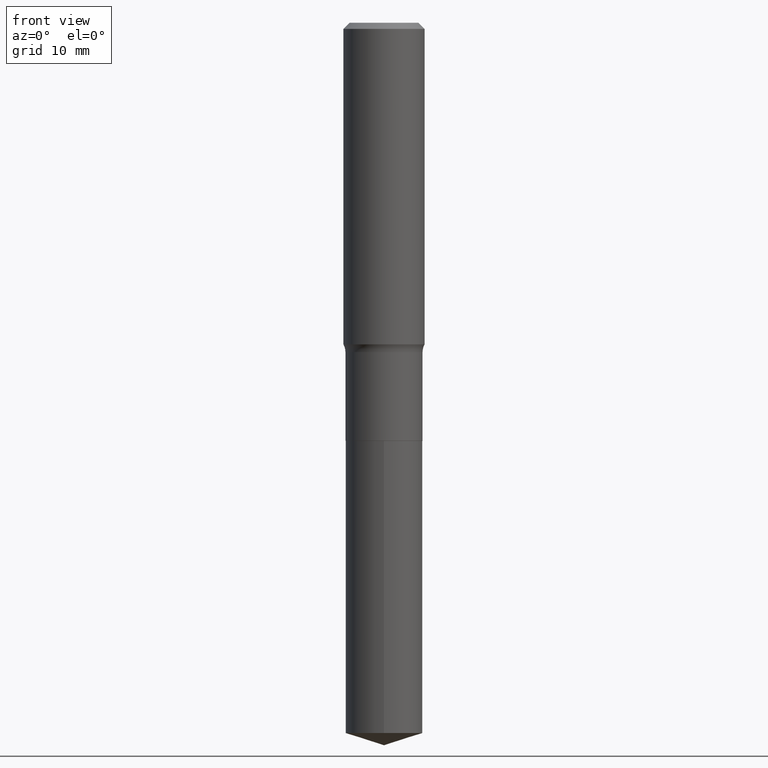
[diagram: clean part render]
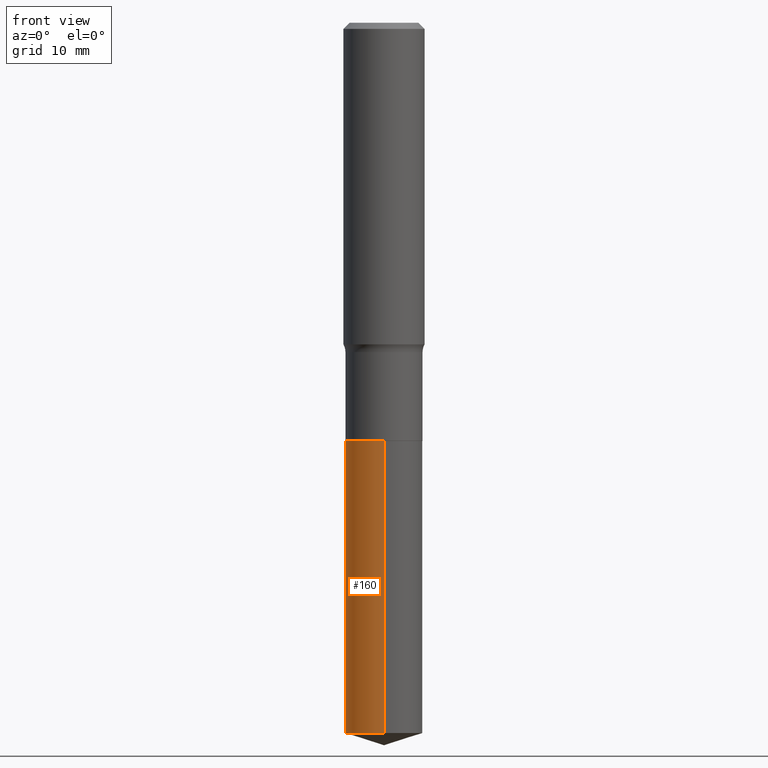
[diagram: same view with one face highlighted and labeled with its STEP entity id]
A machine part, front view. The second image highlights one B-rep face of the part: STEP entity #160.
In plain terms, the highlighted cylindrical surface (partial cylindrical patch) has radius 4.7498 mm, axis along (-0, 0, 1).
Its self-contained STEP definition (entity closure, byte-faithful):
#6 = CARTESIAN_POINT ( 'NONE',  ( 1.328714915871471555E-15, 0.1869999999999929496, -2.027500000000000302 ) ) ;
#22 = ORIENTED_EDGE ( 'NONE', *, *, #172, .T. ) ;
#27 = DIRECTION ( 'NONE',  ( -2.445146056917443157E-29, 3.491943534164230520E-15, 1.000000000000000000 ) ) ;
#30 = EDGE_CURVE ( 'NONE', #355, #370, #371, .T. ) ;
#74 = DIRECTION ( 'NONE',  ( -2.445146056917443157E-29, 3.491943534164230520E-15, 1.000000000000000000 ) ) ;
#77 = CARTESIAN_POINT ( 'NONE',  ( 4.958188004540364383E-29, -7.078978414504477806E-15, -2.027499999999999858 ) ) ;
#78 = DIRECTION ( 'NONE',  ( -2.445146056917442877E-29, 3.491943534164230520E-15, 1.000000000000000000 ) ) ;
#93 = CARTESIAN_POINT ( 'NONE',  ( 4.958188004540364383E-29, -7.078978414504477806E-15, -2.027499999999999858 ) ) ;
#97 = DIRECTION ( 'NONE',  ( -2.445146056917442877E-29, 3.491943534164230520E-15, 1.000000000000000000 ) ) ;
#120 = VECTOR ( 'NONE', #27, 39.37007874015748143 ) ;
#138 = EDGE_LOOP ( 'NONE', ( #467, #22, #408, #403 ) ) ;
#160 = ADVANCED_FACE ( 'NONE', ( #241 ), #394, .T. ) ;
#172 = EDGE_CURVE ( 'NONE', #355, #258, #369, .T. ) ;
#230 = CARTESIAN_POINT ( 'NONE',  ( -1.305814020727282303E-15, -0.1870000000000070772, -2.027499999999999414 ) ) ;
#233 = VECTOR ( 'NONE', #74, 39.37007874015748143 ) ;
#237 = CARTESIAN_POINT ( 'NONE',  ( 8.424033695572536525E-29, -1.202859580728641692E-14, -3.444939126479630076 ) ) ;
#241 = FACE_OUTER_BOUND ( 'NONE', #138, .T. ) ;
#244 = EDGE_CURVE ( 'NONE', #370, #328, #266, .T. ) ;
#248 = CARTESIAN_POINT ( 'NONE',  ( 1.328714915871436648E-15, 0.1869999999999929496, -2.027500000000000302 ) ) ;
#258 = VERTEX_POINT ( 'NONE', #449 ) ;
#262 = DIRECTION ( 'NONE',  ( -6.982962677686266711E-15, -1.000000000000000000, 2.921762560068730595E-15 ) ) ;
#266 = CIRCLE ( 'NONE', #359, 0.1869999999999999996 ) ;
#275 = DIRECTION ( 'NONE',  ( -6.982962677686266711E-15, -1.000000000000000000, 2.921762560068730595E-15 ) ) ;
#279 = DIRECTION ( 'NONE',  ( -2.445146056917442877E-29, 3.491943534164230520E-15, 1.000000000000000000 ) ) ;
#281 = EDGE_CURVE ( 'NONE', #258, #328, #417, .T. ) ;
#285 = AXIS2_PLACEMENT_3D ( 'NONE', #93, #78, #470 ) ;
#328 = VERTEX_POINT ( 'NONE', #332 ) ;
#332 = CARTESIAN_POINT ( 'NONE',  ( -1.305814020727282303E-15, -0.1870000000000070772, -2.027499999999999414 ) ) ;
#337 = AXIS2_PLACEMENT_3D ( 'NONE', #237, #279, #275 ) ;
#348 = CARTESIAN_POINT ( 'NONE',  ( 1.328714915871472344E-15, 0.1869999999999880924, -3.444939126479630964 ) ) ;
#355 = VERTEX_POINT ( 'NONE', #348 ) ;
#359 = AXIS2_PLACEMENT_3D ( 'NONE', #77, #97, #262 ) ;
#369 = CIRCLE ( 'NONE', #337, 0.1869999999999999996 ) ;
#370 = VERTEX_POINT ( 'NONE', #6 ) ;
#371 = LINE ( 'NONE', #248, #120 ) ;
#394 = CYLINDRICAL_SURFACE ( 'NONE', #285, 0.1869999999999999996 ) ;
#403 = ORIENTED_EDGE ( 'NONE', *, *, #244, .F. ) ;
#408 = ORIENTED_EDGE ( 'NONE', *, *, #281, .T. ) ;
#417 = LINE ( 'NONE', #230, #233 ) ;
#449 = CARTESIAN_POINT ( 'NONE',  ( -1.305814020727248382E-15, -0.1870000000000121287, -3.444939126479629632 ) ) ;
#467 = ORIENTED_EDGE ( 'NONE', *, *, #30, .F. ) ;
#470 = DIRECTION ( 'NONE',  ( -6.982962677686266711E-15, -1.000000000000000000, 2.921762560068730595E-15 ) ) ;